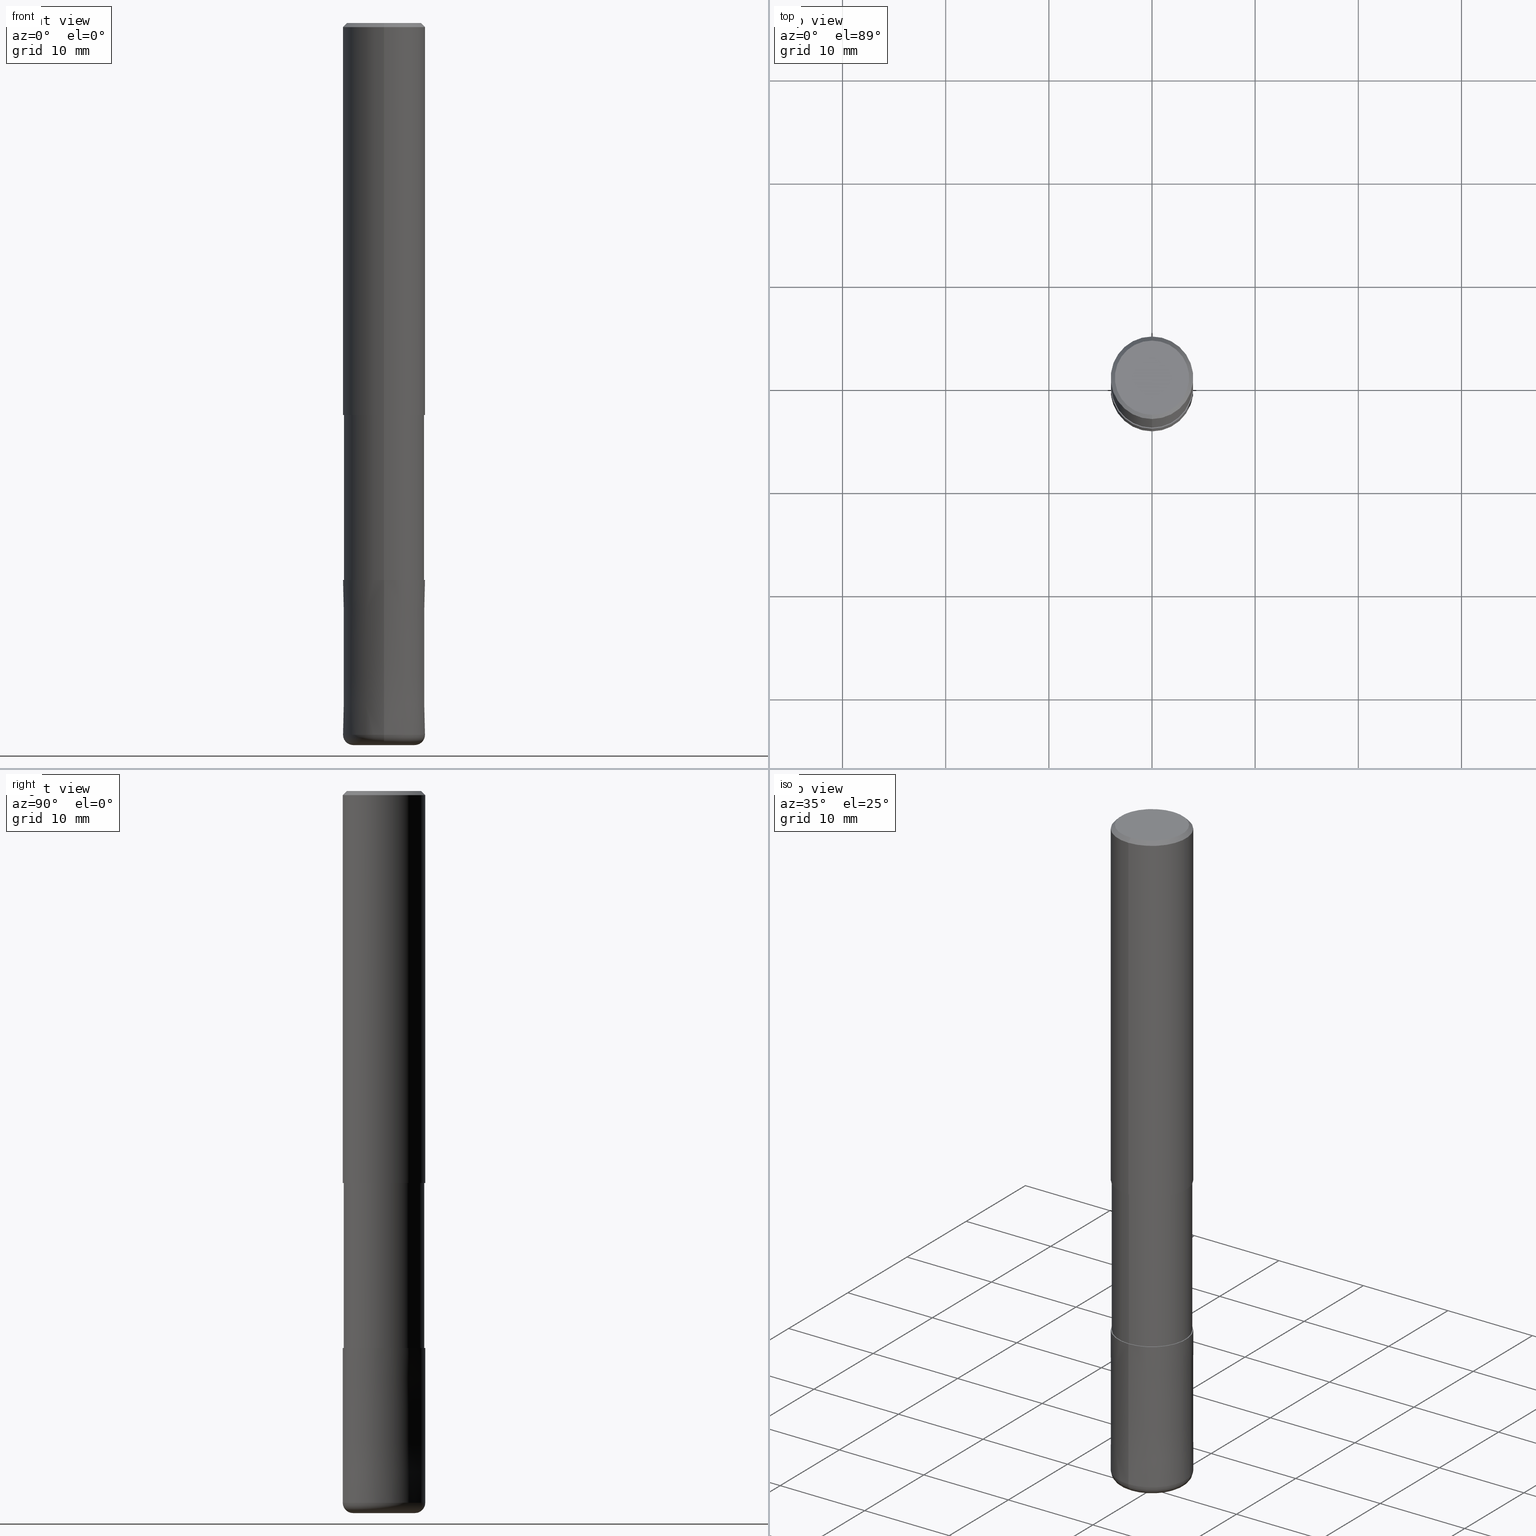
[diagram: canonical four-view strip — front | top / right | iso, engineering-drawing reading convention]
A machine part, canonical four-view strip (front | top / right | iso — engineering-drawing reading convention). The complete STEP part file that produces these views, byte-faithful:
ISO-10303-21;
HEADER;
FILE_DESCRIPTION(('no description'),'unknown implementation level');
FILE_NAME('CXLRS5080-10-32-Huellk.stp','  ',('CIMSOURCE GmbH'),('CADClick - KiM GmbH - www.kimweb.de'),'unknown preprocess','ACIS','unknown authorization');
FILE_SCHEMA(('automotive_design'));
ENDSEC;
DATA;
#1=MECHANICAL_DESIGN_GEOMETRIC_PRESENTATION_REPRESENTATION(' ',(#14,#15,#16,#17,#18,#19,#20,#21,#22,#23,#24,#25,#26,#27,#28,#29,#30,#31,#32,#33,#34,#35,#36,#37,#38,#39,#40,#41,#42,#43,#44,#45,#46,#47,#48,#49,#50,#51,#52,#53,#54,#55,#56,#57,#58,#59,#60,#61,#62,#63,#64,#65,#66,#67,#68,#69,#70,#71,#72,#73,#74,#75,#76,#77,#78,#79,#80,#81,#82,#83,#84,#85,#86,#87,#88,#89,#90,#91,#92,#93,#94,#95,#96,#97),#10);
#2=PRODUCT_DEFINITION_CONTEXT('',#98,'design');
#3=APPLICATION_PROTOCOL_DEFINITION('INTERNATIONAL STANDARD','automotive_design',1994,#98);
#4=PRODUCT_CATEGORY_RELATIONSHIP('NONE','NONE',#99,#100);
#5=SHAPE_DEFINITION_REPRESENTATION(#101,#102);
#6=PRODUCT_DEFINITION_CONTEXT('',#103,'design');
#7=APPLICATION_PROTOCOL_DEFINITION('INTERNATIONAL STANDARD','automotive_design',1994,#103);
#8=PRODUCT_CATEGORY_RELATIONSHIP('NONE','NONE',#104,#105);
#9=SHAPE_DEFINITION_REPRESENTATION(#106,#107);
#10= (GEOMETRIC_REPRESENTATION_CONTEXT(3)GLOBAL_UNCERTAINTY_ASSIGNED_CONTEXT((#110))GLOBAL_UNIT_ASSIGNED_CONTEXT((#112,#113,#114))REPRESENTATION_CONTEXT('NONE','WORKSPACE'));
#14=STYLED_ITEM('',(#116),#117);
#15=STYLED_ITEM('',(#118),#119);
#16=STYLED_ITEM('',(#120),#121);
#17=STYLED_ITEM('',(#122),#123);
#18=STYLED_ITEM('',(#124),#125);
#19=STYLED_ITEM('',(#126),#127);
#20=STYLED_ITEM('',(#128),#129);
#21=STYLED_ITEM('',(#130),#131);
#22=STYLED_ITEM('',(#132),#133);
#23=STYLED_ITEM('',(#134),#135);
#24=STYLED_ITEM('',(#136),#137);
#25=STYLED_ITEM('',(#138),#139);
#26=STYLED_ITEM('',(#140),#141);
#27=STYLED_ITEM('',(#142),#143);
#28=STYLED_ITEM('',(#144),#145);
#29=STYLED_ITEM('',(#146),#147);
#30=STYLED_ITEM('',(#148),#149);
#31=STYLED_ITEM('',(#150),#151);
#32=STYLED_ITEM('',(#152),#153);
#33=STYLED_ITEM('',(#154),#155);
#34=STYLED_ITEM('',(#156),#157);
#35=STYLED_ITEM('',(#158),#159);
#36=STYLED_ITEM('',(#160),#161);
#37=STYLED_ITEM('',(#162),#163);
#38=STYLED_ITEM('',(#164),#165);
#39=STYLED_ITEM('',(#166),#167);
#40=STYLED_ITEM('',(#168),#169);
#41=STYLED_ITEM('',(#170),#171);
#42=STYLED_ITEM('',(#172),#173);
#43=STYLED_ITEM('',(#174),#175);
#44=STYLED_ITEM('',(#176),#177);
#45=STYLED_ITEM('',(#178),#179);
#46=STYLED_ITEM('',(#180),#181);
#47=STYLED_ITEM('',(#182),#183);
#48=STYLED_ITEM('',(#184),#185);
#49=STYLED_ITEM('',(#186),#187);
#50=STYLED_ITEM('',(#188),#189);
#51=STYLED_ITEM('',(#190),#191);
#52=STYLED_ITEM('',(#192),#193);
#53=STYLED_ITEM('',(#194),#195);
#54=STYLED_ITEM('',(#196),#197);
#55=STYLED_ITEM('',(#198),#199);
#56=STYLED_ITEM('',(#200),#201);
#57=STYLED_ITEM('',(#202),#203);
#58=STYLED_ITEM('',(#204),#205);
#59=STYLED_ITEM('',(#206),#207);
#60=STYLED_ITEM('',(#208),#209);
#61=STYLED_ITEM('',(#210),#211);
#62=STYLED_ITEM('',(#212),#213);
#63=STYLED_ITEM('',(#214),#215);
#64=STYLED_ITEM('',(#216),#217);
#65=STYLED_ITEM('',(#218),#219);
#66=STYLED_ITEM('',(#220),#221);
#67=STYLED_ITEM('',(#222),#223);
#68=STYLED_ITEM('',(#224),#225);
#69=STYLED_ITEM('',(#226),#227);
#70=STYLED_ITEM('',(#228),#229);
#71=STYLED_ITEM('',(#230),#231);
#72=STYLED_ITEM('',(#232),#233);
#73=STYLED_ITEM('',(#234),#235);
#74=STYLED_ITEM('',(#236),#237);
#75=STYLED_ITEM('',(#238),#239);
#76=STYLED_ITEM('',(#240),#241);
#77=STYLED_ITEM('',(#242),#243);
#78=STYLED_ITEM('',(#244),#245);
#79=STYLED_ITEM('',(#246),#247);
#80=STYLED_ITEM('',(#248),#249);
#81=STYLED_ITEM('',(#250),#251);
#82=STYLED_ITEM('',(#252),#253);
#83=STYLED_ITEM('',(#254),#255);
#84=STYLED_ITEM('',(#256),#257);
#85=STYLED_ITEM('',(#258),#259);
#86=STYLED_ITEM('',(#260),#261);
#87=STYLED_ITEM('',(#262),#263);
#88=STYLED_ITEM('',(#264),#265);
#89=STYLED_ITEM('',(#266),#267);
#90=STYLED_ITEM('',(#268),#269);
#91=STYLED_ITEM('',(#270),#271);
#92=STYLED_ITEM('',(#272),#273);
#93=STYLED_ITEM('',(#274),#275);
#94=STYLED_ITEM('',(#276),#277);
#95=STYLED_ITEM('',(#278),#279);
#96=STYLED_ITEM('',(#280),#281);
#97=STYLED_ITEM('',(#282),#283);
#98=APPLICATION_CONTEXT(' ');
#99=PRODUCT_CATEGORY('part','NONE');
#100=PRODUCT_RELATED_PRODUCT_CATEGORY('detail',' ',(#284));
#101=PRODUCT_DEFINITION_SHAPE('NONE','NONE',#285);
#102=ADVANCED_BREP_SHAPE_REPRESENTATION('1',(#181,#286),#10);
#103=APPLICATION_CONTEXT(' ');
#104=PRODUCT_CATEGORY('part','NONE');
#105=PRODUCT_RELATED_PRODUCT_CATEGORY('detail',' ',(#287));
#106=PRODUCT_DEFINITION_SHAPE('NONE','NONE',#288);
#107=ADVANCED_BREP_SHAPE_REPRESENTATION('2',(#119,#289),#10);
#110=UNCERTAINTY_MEASURE_WITH_UNIT(LENGTH_MEASURE(1.0E-006),#112,'','');
#112= (CONVERSION_BASED_UNIT('MILLIMETRE',#292)LENGTH_UNIT()NAMED_UNIT(#295));
#113= (NAMED_UNIT(#297)PLANE_ANGLE_UNIT()SI_UNIT($,.RADIAN.));
#114= (NAMED_UNIT(#297)SOLID_ANGLE_UNIT()SI_UNIT($,.STERADIAN.));
#116=PRESENTATION_STYLE_ASSIGNMENT((#303));
#117=VERTEX_POINT('',#304);
#118=PRESENTATION_STYLE_ASSIGNMENT((#305));
#119=MANIFOLD_SOLID_BREP('2',#306);
#120=PRESENTATION_STYLE_ASSIGNMENT((#307));
#121=ADVANCED_FACE('',(#308),#309,.T.);
#122=PRESENTATION_STYLE_ASSIGNMENT((#310));
#123=VERTEX_POINT('',#311);
#124=PRESENTATION_STYLE_ASSIGNMENT((#312));
#125=EDGE_CURVE('',#189,#143,#313,.T.);
#126=PRESENTATION_STYLE_ASSIGNMENT((#314));
#127=EDGE_CURVE('',#213,#243,#315,.T.);
#128=PRESENTATION_STYLE_ASSIGNMENT((#316));
#129=ADVANCED_FACE('',(#317),#318,.T.);
#130=PRESENTATION_STYLE_ASSIGNMENT((#319));
#131=EDGE_CURVE('',#137,#195,#320,.T.);
#132=PRESENTATION_STYLE_ASSIGNMENT((#321));
#133=EDGE_CURVE('',#203,#239,#322,.T.);
#134=PRESENTATION_STYLE_ASSIGNMENT((#323));
#135=EDGE_CURVE('',#283,#151,#324,.T.);
#136=PRESENTATION_STYLE_ASSIGNMENT((#325));
#137=VERTEX_POINT('',#326);
#138=PRESENTATION_STYLE_ASSIGNMENT((#327));
#139=EDGE_CURVE('',#279,#201,#328,.T.);
#140=PRESENTATION_STYLE_ASSIGNMENT((#329));
#141=EDGE_CURVE('',#187,#209,#330,.T.);
#142=PRESENTATION_STYLE_ASSIGNMENT((#331));
#143=VERTEX_POINT('',#332);
#144=PRESENTATION_STYLE_ASSIGNMENT((#333));
#145=ADVANCED_FACE('',(#334),#335,.T.);
#146=PRESENTATION_STYLE_ASSIGNMENT((#336));
#147=EDGE_CURVE('',#257,#241,#337,.T.);
#148=PRESENTATION_STYLE_ASSIGNMENT((#338));
#149=VERTEX_POINT('',#339);
#150=PRESENTATION_STYLE_ASSIGNMENT((#340));
#151=VERTEX_POINT('',#341);
#152=PRESENTATION_STYLE_ASSIGNMENT((#342));
#153=EDGE_CURVE('',#203,#143,#343,.T.);
#154=PRESENTATION_STYLE_ASSIGNMENT((#344));
#155=EDGE_CURVE('',#279,#149,#345,.T.);
#156=PRESENTATION_STYLE_ASSIGNMENT((#346));
#157=EDGE_CURVE('',#237,#193,#347,.T.);
#158=PRESENTATION_STYLE_ASSIGNMENT((#348));
#159=ADVANCED_FACE('',(#349),#350,.T.);
#160=PRESENTATION_STYLE_ASSIGNMENT((#351));
#161=VERTEX_POINT('',#352);
#162=PRESENTATION_STYLE_ASSIGNMENT((#353));
#163=EDGE_CURVE('',#183,#161,#354,.T.);
#164=PRESENTATION_STYLE_ASSIGNMENT((#355));
#165=ADVANCED_FACE('',(#356),#357,.T.);
#166=PRESENTATION_STYLE_ASSIGNMENT((#358));
#167=EDGE_CURVE('',#123,#151,#359,.T.);
#168=PRESENTATION_STYLE_ASSIGNMENT((#360));
#169=ADVANCED_FACE('',(#361),#362,.T.);
#170=PRESENTATION_STYLE_ASSIGNMENT((#363));
#171=ADVANCED_FACE('',(#364),#365,.T.);
#172=PRESENTATION_STYLE_ASSIGNMENT((#366));
#173=ADVANCED_FACE('',(#367,#368),#369,.T.);
#174=PRESENTATION_STYLE_ASSIGNMENT((#370));
#175=EDGE_CURVE('',#187,#237,#371,.T.);
#176=PRESENTATION_STYLE_ASSIGNMENT((#372));
#177=EDGE_CURVE('',#283,#211,#373,.T.);
#178=PRESENTATION_STYLE_ASSIGNMENT((#374));
#179=EDGE_CURVE('',#151,#283,#375,.T.);
#180=PRESENTATION_STYLE_ASSIGNMENT((#376));
#181=MANIFOLD_SOLID_BREP('1',#377);
#182=PRESENTATION_STYLE_ASSIGNMENT((#378));
#183=VERTEX_POINT('',#379);
#184=PRESENTATION_STYLE_ASSIGNMENT((#380));
#185=ADVANCED_FACE('',(#381),#382,.T.);
#186=PRESENTATION_STYLE_ASSIGNMENT((#383));
#187=VERTEX_POINT('',#384);
#188=PRESENTATION_STYLE_ASSIGNMENT((#385));
#189=VERTEX_POINT('',#386);
#190=PRESENTATION_STYLE_ASSIGNMENT((#387));
#191=EDGE_CURVE('',#209,#187,#388,.T.);
#192=PRESENTATION_STYLE_ASSIGNMENT((#389));
#193=VERTEX_POINT('',#390);
#194=PRESENTATION_STYLE_ASSIGNMENT((#391));
#195=VERTEX_POINT('',#392);
#196=PRESENTATION_STYLE_ASSIGNMENT((#393));
#197=EDGE_CURVE('',#123,#211,#394,.T.);
#198=PRESENTATION_STYLE_ASSIGNMENT((#395));
#199=EDGE_CURVE('',#239,#203,#396,.T.);
#200=PRESENTATION_STYLE_ASSIGNMENT((#397));
#201=VERTEX_POINT('',#398);
#202=PRESENTATION_STYLE_ASSIGNMENT((#399));
#203=VERTEX_POINT('',#400);
#204=PRESENTATION_STYLE_ASSIGNMENT((#401));
#205=EDGE_CURVE('',#193,#209,#402,.T.);
#206=PRESENTATION_STYLE_ASSIGNMENT((#403));
#207=ADVANCED_FACE('',(#404),#405,.T.);
#208=PRESENTATION_STYLE_ASSIGNMENT((#406));
#209=VERTEX_POINT('',#407);
#210=PRESENTATION_STYLE_ASSIGNMENT((#408));
#211=VERTEX_POINT('',#409);
#212=PRESENTATION_STYLE_ASSIGNMENT((#410));
#213=VERTEX_POINT('',#411);
#214=PRESENTATION_STYLE_ASSIGNMENT((#412));
#215=EDGE_CURVE('',#149,#117,#413,.T.);
#216=PRESENTATION_STYLE_ASSIGNMENT((#414));
#217=ADVANCED_FACE('',(#415),#416,.T.);
#218=PRESENTATION_STYLE_ASSIGNMENT((#417));
#219=EDGE_CURVE('',#161,#243,#418,.T.);
#220=PRESENTATION_STYLE_ASSIGNMENT((#419));
#221=EDGE_CURVE('',#193,#237,#420,.T.);
#222=PRESENTATION_STYLE_ASSIGNMENT((#421));
#223=ADVANCED_FACE('',(#422),#423,.T.);
#224=PRESENTATION_STYLE_ASSIGNMENT((#424));
#225=ADVANCED_FACE('',(#425),#426,.F.);
#226=PRESENTATION_STYLE_ASSIGNMENT((#427));
#227=EDGE_CURVE('',#189,#241,#428,.T.);
#228=PRESENTATION_STYLE_ASSIGNMENT((#429));
#229=EDGE_CURVE('',#117,#149,#430,.T.);
#230=PRESENTATION_STYLE_ASSIGNMENT((#431));
#231=ADVANCED_FACE('',(#432),#433,.T.);
#232=PRESENTATION_STYLE_ASSIGNMENT((#434));
#233=ADVANCED_FACE('',(#435,#436),#437,.T.);
#234=PRESENTATION_STYLE_ASSIGNMENT((#438));
#235=ADVANCED_FACE('',(#439,#440),#441,.T.);
#236=PRESENTATION_STYLE_ASSIGNMENT((#442));
#237=VERTEX_POINT('',#443);
#238=PRESENTATION_STYLE_ASSIGNMENT((#444));
#239=VERTEX_POINT('',#445);
#240=PRESENTATION_STYLE_ASSIGNMENT((#446));
#241=VERTEX_POINT('',#447);
#242=PRESENTATION_STYLE_ASSIGNMENT((#448));
#243=VERTEX_POINT('',#449);
#244=PRESENTATION_STYLE_ASSIGNMENT((#450));
#245=ADVANCED_FACE('',(#451,#452),#453,.T.);
#246=PRESENTATION_STYLE_ASSIGNMENT((#454));
#247=ADVANCED_FACE('',(#455),#456,.T.);
#248=PRESENTATION_STYLE_ASSIGNMENT((#457));
#249=EDGE_CURVE('',#211,#123,#458,.T.);
#250=PRESENTATION_STYLE_ASSIGNMENT((#459));
#251=EDGE_CURVE('',#117,#201,#460,.T.);
#252=PRESENTATION_STYLE_ASSIGNMENT((#461));
#253=EDGE_CURVE('',#161,#183,#462,.T.);
#254=PRESENTATION_STYLE_ASSIGNMENT((#463));
#255=EDGE_CURVE('',#201,#279,#464,.T.);
#256=PRESENTATION_STYLE_ASSIGNMENT((#465));
#257=VERTEX_POINT('',#466);
#258=PRESENTATION_STYLE_ASSIGNMENT((#467));
#259=EDGE_CURVE('',#195,#213,#468,.T.);
#260=PRESENTATION_STYLE_ASSIGNMENT((#469));
#261=EDGE_CURVE('',#189,#239,#470,.T.);
#262=PRESENTATION_STYLE_ASSIGNMENT((#471));
#263=EDGE_CURVE('',#213,#183,#472,.T.);
#264=PRESENTATION_STYLE_ASSIGNMENT((#473));
#265=ADVANCED_FACE('',(#474),#475,.T.);
#266=PRESENTATION_STYLE_ASSIGNMENT((#476));
#267=EDGE_CURVE('',#257,#143,#477,.T.);
#268=PRESENTATION_STYLE_ASSIGNMENT((#478));
#269=EDGE_CURVE('',#195,#137,#479,.T.);
#270=PRESENTATION_STYLE_ASSIGNMENT((#480));
#271=EDGE_CURVE('',#243,#137,#481,.T.);
#272=PRESENTATION_STYLE_ASSIGNMENT((#482));
#273=EDGE_CURVE('',#143,#189,#483,.T.);
#274=PRESENTATION_STYLE_ASSIGNMENT((#484));
#275=ADVANCED_FACE('',(#485),#486,.F.);
#276=PRESENTATION_STYLE_ASSIGNMENT((#487));
#277=EDGE_CURVE('',#241,#257,#488,.T.);
#278=PRESENTATION_STYLE_ASSIGNMENT((#489));
#279=VERTEX_POINT('',#490);
#280=PRESENTATION_STYLE_ASSIGNMENT((#491));
#281=EDGE_CURVE('',#243,#213,#492,.T.);
#282=PRESENTATION_STYLE_ASSIGNMENT((#493));
#283=VERTEX_POINT('',#494);
#284=PRODUCT('1','1','PART-1-DESC',(#495));
#285=PRODUCT_DEFINITION('NONE','NONE',#496,#2);
#286=AXIS2_PLACEMENT_3D('',#497,#498,#499);
#287=PRODUCT('2','2','PART-2-DESC',(#500));
#288=PRODUCT_DEFINITION('NONE','NONE',#501,#6);
#289=AXIS2_PLACEMENT_3D('',#502,#503,#504);
#292=LENGTH_MEASURE_WITH_UNIT(LENGTH_MEASURE(1.0),#505);
#295=DIMENSIONAL_EXPONENTS(1.0,0.0,0.0,0.0,0.0,0.0,0.0);
#297=DIMENSIONAL_EXPONENTS(0.0,0.0,0.0,0.0,0.0,0.0,0.0);
#303=POINT_STYLE(' ',#506,POSITIVE_LENGTH_MEASURE(1.0E-006),#507);
#304=CARTESIAN_POINT('',(0.0,3.89995,-38.0));
#305=SURFACE_STYLE_USAGE(.BOTH.,#508);
#306=CLOSED_SHELL('',(#275,#265,#185,#245,#165,#207,#235,#225));
#307=SURFACE_STYLE_USAGE(.BOTH.,#509);
#308=FACE_OUTER_BOUND('',#510,.T.);
#309=CYLINDRICAL_SURFACE('',#511,4.0);
#310=POINT_STYLE(' ',#512,POSITIVE_LENGTH_MEASURE(1.0E-006),#513);
#311=CARTESIAN_POINT('',(2.20429143688028E-016,-1.8,-69.9));
#312=CURVE_STYLE('',#514,POSITIVE_LENGTH_MEASURE(1.0E-006),#515);
#313=CIRCLE('',#516,4.0);
#314=CURVE_STYLE('',#517,POSITIVE_LENGTH_MEASURE(1.0E-006),#518);
#315=CIRCLE('',#519,4.0);
#316=SURFACE_STYLE_USAGE(.BOTH.,#520);
#317=FACE_OUTER_BOUND('',#521,.T.);
#318=PLANE('',#522);
#319=CURVE_STYLE('',#523,POSITIVE_LENGTH_MEASURE(1.0E-006),#524);
#320=CIRCLE('',#525,3.6);
#321=CURVE_STYLE('',#526,POSITIVE_LENGTH_MEASURE(1.0E-006),#527);
#322=CIRCLE('',#528,3.9999);
#323=CURVE_STYLE('',#529,POSITIVE_LENGTH_MEASURE(1.0E-006),#530);
#324=CIRCLE('',#531,1.8);
#325=POINT_STYLE(' ',#532,POSITIVE_LENGTH_MEASURE(1.0E-006),#533);
#326=CARTESIAN_POINT('',(4.40858287376056E-016,-3.6,0.0));
#327=CURVE_STYLE('',#534,POSITIVE_LENGTH_MEASURE(1.0E-006),#535);
#328=CIRCLE('',#536,3.89995);
#329=CURVE_STYLE('',#537,POSITIVE_LENGTH_MEASURE(1.0E-006),#538);
#330=CIRCLE('',#539,1.8);
#331=POINT_STYLE(' ',#540,POSITIVE_LENGTH_MEASURE(1.0E-006),#541);
#332=CARTESIAN_POINT('',(0.0,4.0,-69.0));
#333=SURFACE_STYLE_USAGE(.BOTH.,#542);
#334=FACE_OUTER_BOUND('',#543,.T.);
#335=CYLINDRICAL_SURFACE('',#544,1.8);
#336=CURVE_STYLE('',#545,POSITIVE_LENGTH_MEASURE(1.0E-006),#546);
#337=CIRCLE('',#547,3.0);
#338=POINT_STYLE(' ',#548,POSITIVE_LENGTH_MEASURE(1.0E-006),#549);
#339=CARTESIAN_POINT('',(4.77590354958958E-016,-3.89995,-38.0));
#340=POINT_STYLE(' ',#550,POSITIVE_LENGTH_MEASURE(1.0E-006),#551);
#341=CARTESIAN_POINT('',(2.20429143688028E-016,-1.8,-54.0));
#342=CURVE_STYLE('',#552,POSITIVE_LENGTH_MEASURE(1.0E-006),#553);
#343=LINE('',#554,#555);
#344=CURVE_STYLE('',#556,POSITIVE_LENGTH_MEASURE(1.0E-006),#557);
#345=LINE('',#558,#559);
#346=CURVE_STYLE('',#560,POSITIVE_LENGTH_MEASURE(1.0E-006),#561);
#347=CIRCLE('',#562,1.8);
#348=SURFACE_STYLE_USAGE(.BOTH.,#563);
#349=FACE_OUTER_BOUND('',#564,.T.);
#350=CONICAL_SURFACE('',#565,3.8,0.78539816339745);
#351=POINT_STYLE(' ',#566,POSITIVE_LENGTH_MEASURE(1.0E-006),#567);
#352=CARTESIAN_POINT('',(4.89842541528951E-016,-4.0,-38.0));
#353=CURVE_STYLE('',#568,POSITIVE_LENGTH_MEASURE(1.0E-006),#569);
#354=CIRCLE('',#570,4.0);
#355=SURFACE_STYLE_USAGE(.BOTH.,#571);
#356=FACE_OUTER_BOUND('',#572,.T.);
#357=CONICAL_SURFACE('',#573,3.99995,6.66666666658197E-006);
#358=CURVE_STYLE('',#574,POSITIVE_LENGTH_MEASURE(1.0E-006),#575);
#359=LINE('',#576,#577);
#360=SURFACE_STYLE_USAGE(.BOTH.,#578);
#361=FACE_OUTER_BOUND('',#579,.T.);
#362=CYLINDRICAL_SURFACE('',#580,3.89995);
#363=SURFACE_STYLE_USAGE(.BOTH.,#581);
#364=FACE_OUTER_BOUND('',#582,.T.);
#365=CYLINDRICAL_SURFACE('',#583,3.89995);
#366=SURFACE_STYLE_USAGE(.BOTH.,#584);
#367=FACE_OUTER_BOUND('',#585,.T.);
#368=FACE_BOUND('',#586,.T.);
#369=PLANE('',#587);
#370=CURVE_STYLE('',#588,POSITIVE_LENGTH_MEASURE(1.0E-006),#589);
#371=LINE('',#590,#591);
#372=CURVE_STYLE('',#592,POSITIVE_LENGTH_MEASURE(1.0E-006),#593);
#373=LINE('',#594,#595);
#374=CURVE_STYLE('',#596,POSITIVE_LENGTH_MEASURE(1.0E-006),#597);
#375=CIRCLE('',#598,1.8);
#376=SURFACE_STYLE_USAGE(.BOTH.,#599);
#377=CLOSED_SHELL('',(#223,#169,#247,#217,#173,#129,#159,#121,#171,#233,#145,#231));
#378=POINT_STYLE(' ',#600,POSITIVE_LENGTH_MEASURE(1.0E-006),#601);
#379=CARTESIAN_POINT('',(0.0,4.0,-38.0));
#380=SURFACE_STYLE_USAGE(.BOTH.,#602);
#381=FACE_OUTER_BOUND('',#603,.T.);
#382=CONICAL_SURFACE('',#604,3.99995,6.66666666658197E-006);
#383=POINT_STYLE(' ',#605,POSITIVE_LENGTH_MEASURE(1.0E-006),#606);
#384=CARTESIAN_POINT('',(2.20429143688028E-016,-1.8,-70.0));
#385=POINT_STYLE(' ',#607,POSITIVE_LENGTH_MEASURE(1.0E-006),#608);
#386=CARTESIAN_POINT('',(4.89842541528951E-016,-4.0,-69.0));
#387=CURVE_STYLE('',#609,POSITIVE_LENGTH_MEASURE(1.0E-006),#610);
#388=CIRCLE('',#611,1.8);
#389=POINT_STYLE(' ',#612,POSITIVE_LENGTH_MEASURE(1.0E-006),#613);
#390=CARTESIAN_POINT('',(0.0,1.8,-54.0));
#391=POINT_STYLE(' ',#614,POSITIVE_LENGTH_MEASURE(1.0E-006),#615);
#392=CARTESIAN_POINT('',(0.0,3.6,0.0));
#393=CURVE_STYLE('',#616,POSITIVE_LENGTH_MEASURE(1.0E-006),#617);
#394=CIRCLE('',#618,1.8);
#395=CURVE_STYLE('',#619,POSITIVE_LENGTH_MEASURE(1.0E-006),#620);
#396=CIRCLE('',#621,3.9999);
#397=POINT_STYLE(' ',#622,POSITIVE_LENGTH_MEASURE(1.0E-006),#623);
#398=CARTESIAN_POINT('',(0.0,3.89995,-54.0));
#399=POINT_STYLE(' ',#624,POSITIVE_LENGTH_MEASURE(1.0E-006),#625);
#400=CARTESIAN_POINT('',(0.0,3.9999,-54.0));
#401=CURVE_STYLE('',#626,POSITIVE_LENGTH_MEASURE(1.0E-006),#627);
#402=LINE('',#628,#629);
#403=SURFACE_STYLE_USAGE(.BOTH.,#630);
#404=FACE_OUTER_BOUND('',#631,.T.);
#405=TOROIDAL_SURFACE('',#632,3.0,1.0);
#406=POINT_STYLE(' ',#633,POSITIVE_LENGTH_MEASURE(1.0E-006),#634);
#407=CARTESIAN_POINT('',(0.0,1.8,-70.0));
#408=POINT_STYLE(' ',#635,POSITIVE_LENGTH_MEASURE(1.0E-006),#636);
#409=CARTESIAN_POINT('',(0.0,1.8,-69.9));
#410=POINT_STYLE(' ',#637,POSITIVE_LENGTH_MEASURE(1.0E-006),#638);
#411=CARTESIAN_POINT('',(0.0,4.0,-0.399999999999999));
#412=CURVE_STYLE('',#639,POSITIVE_LENGTH_MEASURE(1.0E-006),#640);
#413=CIRCLE('',#641,3.89995);
#414=SURFACE_STYLE_USAGE(.BOTH.,#642);
#415=FACE_OUTER_BOUND('',#643,.T.);
#416=CONICAL_SURFACE('',#644,3.8,0.78539816339745);
#417=CURVE_STYLE('',#645,POSITIVE_LENGTH_MEASURE(1.0E-006),#646);
#418=LINE('',#647,#648);
#419=CURVE_STYLE('',#649,POSITIVE_LENGTH_MEASURE(1.0E-006),#650);
#420=CIRCLE('',#651,1.8);
#421=SURFACE_STYLE_USAGE(.BOTH.,#652);
#422=FACE_OUTER_BOUND('',#653,.T.);
#423=CYLINDRICAL_SURFACE('',#654,1.8);
#424=SURFACE_STYLE_USAGE(.BOTH.,#655);
#425=FACE_OUTER_BOUND('',#656,.T.);
#426=CYLINDRICAL_SURFACE('',#657,1.8);
#427=CURVE_STYLE('',#658,POSITIVE_LENGTH_MEASURE(1.0E-006),#659);
#428=CIRCLE('',#660,1.0);
#429=CURVE_STYLE('',#661,POSITIVE_LENGTH_MEASURE(1.0E-006),#662);
#430=CIRCLE('',#663,3.89995);
#431=SURFACE_STYLE_USAGE(.BOTH.,#664);
#432=FACE_OUTER_BOUND('',#665,.T.);
#433=PLANE('',#666);
#434=SURFACE_STYLE_USAGE(.BOTH.,#667);
#435=FACE_BOUND('',#668,.T.);
#436=FACE_OUTER_BOUND('',#669,.T.);
#437=PLANE('',#670);
#438=SURFACE_STYLE_USAGE(.BOTH.,#671);
#439=FACE_BOUND('',#672,.T.);
#440=FACE_OUTER_BOUND('',#673,.T.);
#441=PLANE('',#674);
#442=POINT_STYLE(' ',#675,POSITIVE_LENGTH_MEASURE(1.0E-006),#676);
#443=CARTESIAN_POINT('',(2.20429143688028E-016,-1.8,-54.0));
#444=POINT_STYLE(' ',#677,POSITIVE_LENGTH_MEASURE(1.0E-006),#678);
#445=CARTESIAN_POINT('',(4.89830295465413E-016,-3.9999,-54.0));
#446=POINT_STYLE(' ',#679,POSITIVE_LENGTH_MEASURE(1.0E-006),#680);
#447=CARTESIAN_POINT('',(3.67381906146713E-016,-3.0,-70.0));
#448=POINT_STYLE(' ',#681,POSITIVE_LENGTH_MEASURE(1.0E-006),#682);
#449=CARTESIAN_POINT('',(4.89842541528951E-016,-4.0,-0.399999999999999));
#450=SURFACE_STYLE_USAGE(.BOTH.,#683);
#451=FACE_OUTER_BOUND('',#684,.T.);
#452=FACE_BOUND('',#685,.T.);
#453=PLANE('',#686);
#454=SURFACE_STYLE_USAGE(.BOTH.,#687);
#455=FACE_OUTER_BOUND('',#688,.T.);
#456=CYLINDRICAL_SURFACE('',#689,4.0);
#457=CURVE_STYLE('',#690,POSITIVE_LENGTH_MEASURE(1.0E-006),#691);
#458=CIRCLE('',#692,1.8);
#459=CURVE_STYLE('',#693,POSITIVE_LENGTH_MEASURE(1.0E-006),#694);
#460=LINE('',#695,#696);
#461=CURVE_STYLE('',#697,POSITIVE_LENGTH_MEASURE(1.0E-006),#698);
#462=CIRCLE('',#699,4.0);
#463=CURVE_STYLE('',#700,POSITIVE_LENGTH_MEASURE(1.0E-006),#701);
#464=CIRCLE('',#702,3.89995);
#465=POINT_STYLE(' ',#703,POSITIVE_LENGTH_MEASURE(1.0E-006),#704);
#466=CARTESIAN_POINT('',(0.0,3.0,-70.0));
#467=CURVE_STYLE('',#705,POSITIVE_LENGTH_MEASURE(1.0E-006),#706);
#468=LINE('',#707,#708);
#469=CURVE_STYLE('',#709,POSITIVE_LENGTH_MEASURE(1.0E-006),#710);
#470=LINE('',#711,#712);
#471=CURVE_STYLE('',#713,POSITIVE_LENGTH_MEASURE(1.0E-006),#714);
#472=LINE('',#715,#716);
#473=SURFACE_STYLE_USAGE(.BOTH.,#717);
#474=FACE_OUTER_BOUND('',#718,.T.);
#475=TOROIDAL_SURFACE('',#719,3.0,1.0);
#476=CURVE_STYLE('',#720,POSITIVE_LENGTH_MEASURE(1.0E-006),#721);
#477=CIRCLE('',#722,1.0);
#478=CURVE_STYLE('',#723,POSITIVE_LENGTH_MEASURE(1.0E-006),#724);
#479=CIRCLE('',#725,3.6);
#480=CURVE_STYLE('',#726,POSITIVE_LENGTH_MEASURE(1.0E-006),#727);
#481=LINE('',#728,#729);
#482=CURVE_STYLE('',#730,POSITIVE_LENGTH_MEASURE(1.0E-006),#731);
#483=CIRCLE('',#732,4.0);
#484=SURFACE_STYLE_USAGE(.BOTH.,#733);
#485=FACE_OUTER_BOUND('',#734,.T.);
#486=CYLINDRICAL_SURFACE('',#735,1.8);
#487=CURVE_STYLE('',#736,POSITIVE_LENGTH_MEASURE(1.0E-006),#737);
#488=CIRCLE('',#738,3.0);
#489=POINT_STYLE(' ',#739,POSITIVE_LENGTH_MEASURE(1.0E-006),#740);
#490=CARTESIAN_POINT('',(4.77590354958958E-016,-3.89995,-54.0));
#491=CURVE_STYLE('',#741,POSITIVE_LENGTH_MEASURE(1.0E-006),#742);
#492=CIRCLE('',#743,4.0);
#493=POINT_STYLE(' ',#744,POSITIVE_LENGTH_MEASURE(1.0E-006),#745);
#494=CARTESIAN_POINT('',(0.0,1.8,-54.0));
#495=PRODUCT_CONTEXT('',#98,'mechanical');
#496=PRODUCT_DEFINITION_FORMATION_WITH_SPECIFIED_SOURCE(' ','NONE',#284,.NOT_KNOWN.);
#497=CARTESIAN_POINT('',(0.0,0.0,0.0));
#498=DIRECTION('',(0.0,0.0,1.0));
#499=DIRECTION('',(1.0,0.0,0.0));
#500=PRODUCT_CONTEXT('',#103,'mechanical');
#501=PRODUCT_DEFINITION_FORMATION_WITH_SPECIFIED_SOURCE(' ','NONE',#287,.NOT_KNOWN.);
#502=CARTESIAN_POINT('',(0.0,0.0,0.0));
#503=DIRECTION('',(0.0,0.0,1.0));
#504=DIRECTION('',(1.0,0.0,0.0));
#505= (NAMED_UNIT(#295)LENGTH_UNIT()SI_UNIT(.MILLI.,.METRE.));
#506=PRE_DEFINED_MARKER('');
#507=COLOUR_RGB('',0.498039215803146,0.498039215803146,0.498039215803146);
#508=SURFACE_SIDE_STYLE('',(#747));
#509=SURFACE_SIDE_STYLE('',(#748));
#510=EDGE_LOOP('',(#749,#750,#751,#752));
#511=AXIS2_PLACEMENT_3D('',#753,#754,#755);
#512=PRE_DEFINED_MARKER('');
#513=COLOUR_RGB('',0.498039215803146,0.498039215803146,0.498039215803146);
#514=DRAUGHTING_PRE_DEFINED_CURVE_FONT('continuous');
#515=COLOUR_RGB('',0.800000011920929,0.800000011920929,0.800000011920929);
#516=AXIS2_PLACEMENT_3D('',#756,#757,#758);
#517=DRAUGHTING_PRE_DEFINED_CURVE_FONT('continuous');
#518=COLOUR_RGB('',0.498039215803146,0.498039215803146,0.498039215803146);
#519=AXIS2_PLACEMENT_3D('',#759,#760,#761);
#520=SURFACE_SIDE_STYLE('',(#762));
#521=EDGE_LOOP('',(#763,#764));
#522=AXIS2_PLACEMENT_3D('',#765,#766,#767);
#523=DRAUGHTING_PRE_DEFINED_CURVE_FONT('continuous');
#524=COLOUR_RGB('',0.498039215803146,0.498039215803146,0.498039215803146);
#525=AXIS2_PLACEMENT_3D('',#768,#769,#770);
#526=DRAUGHTING_PRE_DEFINED_CURVE_FONT('continuous');
#527=COLOUR_RGB('',0.800000011920929,0.800000011920929,0.800000011920929);
#528=AXIS2_PLACEMENT_3D('',#771,#772,#773);
#529=DRAUGHTING_PRE_DEFINED_CURVE_FONT('continuous');
#530=COLOUR_RGB('',0.498039215803146,0.498039215803146,0.498039215803146);
#531=AXIS2_PLACEMENT_3D('',#774,#775,#776);
#532=PRE_DEFINED_MARKER('');
#533=COLOUR_RGB('',0.498039215803146,0.498039215803146,0.498039215803146);
#534=DRAUGHTING_PRE_DEFINED_CURVE_FONT('continuous');
#535=COLOUR_RGB('',0.498039215803146,0.498039215803146,0.498039215803146);
#536=AXIS2_PLACEMENT_3D('',#777,#778,#779);
#537=DRAUGHTING_PRE_DEFINED_CURVE_FONT('continuous');
#538=COLOUR_RGB('',0.800000011920929,0.800000011920929,0.800000011920929);
#539=AXIS2_PLACEMENT_3D('',#780,#781,#782);
#540=PRE_DEFINED_MARKER('');
#541=COLOUR_RGB('',0.800000011920929,0.800000011920929,0.800000011920929);
#542=SURFACE_SIDE_STYLE('',(#783));
#543=EDGE_LOOP('',(#784,#785,#786,#787));
#544=AXIS2_PLACEMENT_3D('',#788,#789,#790);
#545=DRAUGHTING_PRE_DEFINED_CURVE_FONT('continuous');
#546=COLOUR_RGB('',0.800000011920929,0.800000011920929,0.800000011920929);
#547=AXIS2_PLACEMENT_3D('',#791,#792,#793);
#548=PRE_DEFINED_MARKER('');
#549=COLOUR_RGB('',0.498039215803146,0.498039215803146,0.498039215803146);
#550=PRE_DEFINED_MARKER('');
#551=COLOUR_RGB('',0.498039215803146,0.498039215803146,0.498039215803146);
#552=DRAUGHTING_PRE_DEFINED_CURVE_FONT('continuous');
#553=COLOUR_RGB('',0.800000011920929,0.800000011920929,0.800000011920929);
#554=CARTESIAN_POINT('',(-4.89836418497182E-016,3.99995,-61.5));
#555=VECTOR('',#794,1.0);
#556=DRAUGHTING_PRE_DEFINED_CURVE_FONT('continuous');
#557=COLOUR_RGB('',0.498039215803146,0.498039215803146,0.498039215803146);
#558=CARTESIAN_POINT('',(4.77590354958958E-016,-3.89995,-46.0));
#559=VECTOR('',#795,1.0);
#560=DRAUGHTING_PRE_DEFINED_CURVE_FONT('continuous');
#561=COLOUR_RGB('',0.800000011920929,0.800000011920929,0.800000011920929);
#562=AXIS2_PLACEMENT_3D('',#796,#797,#798);
#563=SURFACE_SIDE_STYLE('',(#799));
#564=EDGE_LOOP('',(#800,#801,#802,#803));
#565=AXIS2_PLACEMENT_3D('',#804,#805,#806);
#566=PRE_DEFINED_MARKER('');
#567=COLOUR_RGB('',0.498039215803146,0.498039215803146,0.498039215803146);
#568=DRAUGHTING_PRE_DEFINED_CURVE_FONT('continuous');
#569=COLOUR_RGB('',0.498039215803146,0.498039215803146,0.498039215803146);
#570=AXIS2_PLACEMENT_3D('',#807,#808,#809);
#571=SURFACE_SIDE_STYLE('',(#810));
#572=EDGE_LOOP('',(#811,#812,#813,#814));
#573=AXIS2_PLACEMENT_3D('',#815,#816,#817);
#574=DRAUGHTING_PRE_DEFINED_CURVE_FONT('continuous');
#575=COLOUR_RGB('',0.498039215803146,0.498039215803146,0.498039215803146);
#576=CARTESIAN_POINT('',(2.20429143688028E-016,-1.8,-61.95));
#577=VECTOR('',#818,1.0);
#578=SURFACE_SIDE_STYLE('',(#819));
#579=EDGE_LOOP('',(#820,#821,#822,#823));
#580=AXIS2_PLACEMENT_3D('',#824,#825,#826);
#581=SURFACE_SIDE_STYLE('',(#827));
#582=EDGE_LOOP('',(#828,#829,#830,#831));
#583=AXIS2_PLACEMENT_3D('',#832,#833,#834);
#584=SURFACE_SIDE_STYLE('',(#835));
#585=EDGE_LOOP('',(#836,#837));
#586=EDGE_LOOP('',(#838,#839));
#587=AXIS2_PLACEMENT_3D('',#840,#841,#842);
#588=DRAUGHTING_PRE_DEFINED_CURVE_FONT('continuous');
#589=COLOUR_RGB('',0.800000011920929,0.800000011920929,0.800000011920929);
#590=CARTESIAN_POINT('',(2.20429143688028E-016,-1.8,-62.0));
#591=VECTOR('',#843,1.0);
#592=DRAUGHTING_PRE_DEFINED_CURVE_FONT('continuous');
#593=COLOUR_RGB('',0.498039215803146,0.498039215803146,0.498039215803146);
#594=CARTESIAN_POINT('',(-2.20429143688028E-016,1.8,-61.95));
#595=VECTOR('',#844,1.0);
#596=DRAUGHTING_PRE_DEFINED_CURVE_FONT('continuous');
#597=COLOUR_RGB('',0.498039215803146,0.498039215803146,0.498039215803146);
#598=AXIS2_PLACEMENT_3D('',#845,#846,#847);
#599=SURFACE_SIDE_STYLE('',(#848));
#600=PRE_DEFINED_MARKER('');
#601=COLOUR_RGB('',0.498039215803146,0.498039215803146,0.498039215803146);
#602=SURFACE_SIDE_STYLE('',(#849));
#603=EDGE_LOOP('',(#850,#851,#852,#853));
#604=AXIS2_PLACEMENT_3D('',#854,#855,#856);
#605=PRE_DEFINED_MARKER('');
#606=COLOUR_RGB('',0.800000011920929,0.800000011920929,0.800000011920929);
#607=PRE_DEFINED_MARKER('');
#608=COLOUR_RGB('',0.800000011920929,0.800000011920929,0.800000011920929);
#609=DRAUGHTING_PRE_DEFINED_CURVE_FONT('continuous');
#610=COLOUR_RGB('',0.800000011920929,0.800000011920929,0.800000011920929);
#611=AXIS2_PLACEMENT_3D('',#857,#858,#859);
#612=PRE_DEFINED_MARKER('');
#613=COLOUR_RGB('',0.800000011920929,0.800000011920929,0.800000011920929);
#614=PRE_DEFINED_MARKER('');
#615=COLOUR_RGB('',0.498039215803146,0.498039215803146,0.498039215803146);
#616=DRAUGHTING_PRE_DEFINED_CURVE_FONT('continuous');
#617=COLOUR_RGB('',0.498039215803146,0.498039215803146,0.498039215803146);
#618=AXIS2_PLACEMENT_3D('',#860,#861,#862);
#619=DRAUGHTING_PRE_DEFINED_CURVE_FONT('continuous');
#620=COLOUR_RGB('',0.800000011920929,0.800000011920929,0.800000011920929);
#621=AXIS2_PLACEMENT_3D('',#863,#864,#865);
#622=PRE_DEFINED_MARKER('');
#623=COLOUR_RGB('',0.498039215803146,0.498039215803146,0.498039215803146);
#624=PRE_DEFINED_MARKER('');
#625=COLOUR_RGB('',0.800000011920929,0.800000011920929,0.800000011920929);
#626=DRAUGHTING_PRE_DEFINED_CURVE_FONT('continuous');
#627=COLOUR_RGB('',0.800000011920929,0.800000011920929,0.800000011920929);
#628=CARTESIAN_POINT('',(-2.20429143688028E-016,1.8,-62.0));
#629=VECTOR('',#866,1.0);
#630=SURFACE_SIDE_STYLE('',(#867));
#631=EDGE_LOOP('',(#868,#869,#870,#871));
#632=AXIS2_PLACEMENT_3D('',#872,#873,#874);
#633=PRE_DEFINED_MARKER('');
#634=COLOUR_RGB('',0.800000011920929,0.800000011920929,0.800000011920929);
#635=PRE_DEFINED_MARKER('');
#636=COLOUR_RGB('',0.498039215803146,0.498039215803146,0.498039215803146);
#637=PRE_DEFINED_MARKER('');
#638=COLOUR_RGB('',0.498039215803146,0.498039215803146,0.498039215803146);
#639=DRAUGHTING_PRE_DEFINED_CURVE_FONT('continuous');
#640=COLOUR_RGB('',0.498039215803146,0.498039215803146,0.498039215803146);
#641=AXIS2_PLACEMENT_3D('',#875,#876,#877);
#642=SURFACE_SIDE_STYLE('',(#878));
#643=EDGE_LOOP('',(#879,#880,#881,#882));
#644=AXIS2_PLACEMENT_3D('',#883,#884,#885);
#645=DRAUGHTING_PRE_DEFINED_CURVE_FONT('continuous');
#646=COLOUR_RGB('',0.498039215803146,0.498039215803146,0.498039215803146);
#647=CARTESIAN_POINT('',(4.89842541528951E-016,-4.0,-19.2));
#648=VECTOR('',#886,1.0);
#649=DRAUGHTING_PRE_DEFINED_CURVE_FONT('continuous');
#650=COLOUR_RGB('',0.800000011920929,0.800000011920929,0.800000011920929);
#651=AXIS2_PLACEMENT_3D('',#887,#888,#889);
#652=SURFACE_SIDE_STYLE('',(#890));
#653=EDGE_LOOP('',(#891,#892,#893,#894));
#654=AXIS2_PLACEMENT_3D('',#895,#896,#897);
#655=SURFACE_SIDE_STYLE('',(#898));
#656=EDGE_LOOP('',(#899,#900,#901,#902));
#657=AXIS2_PLACEMENT_3D('',#903,#904,#905);
#658=DRAUGHTING_PRE_DEFINED_CURVE_FONT('continuous');
#659=COLOUR_RGB('',0.800000011920929,0.800000011920929,0.800000011920929);
#660=AXIS2_PLACEMENT_3D('',#906,#907,#908);
#661=DRAUGHTING_PRE_DEFINED_CURVE_FONT('continuous');
#662=COLOUR_RGB('',0.498039215803146,0.498039215803146,0.498039215803146);
#663=AXIS2_PLACEMENT_3D('',#909,#910,#911);
#664=SURFACE_SIDE_STYLE('',(#912));
#665=EDGE_LOOP('',(#913,#914));
#666=AXIS2_PLACEMENT_3D('',#915,#916,#917);
#667=SURFACE_SIDE_STYLE('',(#918));
#668=EDGE_LOOP('',(#919,#920));
#669=EDGE_LOOP('',(#921,#922));
#670=AXIS2_PLACEMENT_3D('',#923,#924,#925);
#671=SURFACE_SIDE_STYLE('',(#926));
#672=EDGE_LOOP('',(#927,#928));
#673=EDGE_LOOP('',(#929,#930));
#674=AXIS2_PLACEMENT_3D('',#931,#932,#933);
#675=PRE_DEFINED_MARKER('');
#676=COLOUR_RGB('',0.800000011920929,0.800000011920929,0.800000011920929);
#677=PRE_DEFINED_MARKER('');
#678=COLOUR_RGB('',0.800000011920929,0.800000011920929,0.800000011920929);
#679=PRE_DEFINED_MARKER('');
#680=COLOUR_RGB('',0.800000011920929,0.800000011920929,0.800000011920929);
#681=PRE_DEFINED_MARKER('');
#682=COLOUR_RGB('',0.498039215803146,0.498039215803146,0.498039215803146);
#683=SURFACE_SIDE_STYLE('',(#934));
#684=EDGE_LOOP('',(#935,#936));
#685=EDGE_LOOP('',(#937,#938));
#686=AXIS2_PLACEMENT_3D('',#939,#940,#941);
#687=SURFACE_SIDE_STYLE('',(#942));
#688=EDGE_LOOP('',(#943,#944,#945,#946));
#689=AXIS2_PLACEMENT_3D('',#947,#948,#949);
#690=DRAUGHTING_PRE_DEFINED_CURVE_FONT('continuous');
#691=COLOUR_RGB('',0.498039215803146,0.498039215803146,0.498039215803146);
#692=AXIS2_PLACEMENT_3D('',#950,#951,#952);
#693=DRAUGHTING_PRE_DEFINED_CURVE_FONT('continuous');
#694=COLOUR_RGB('',0.498039215803146,0.498039215803146,0.498039215803146);
#695=CARTESIAN_POINT('',(-4.77590354958958E-016,3.89995,-46.0));
#696=VECTOR('',#953,1.0);
#697=DRAUGHTING_PRE_DEFINED_CURVE_FONT('continuous');
#698=COLOUR_RGB('',0.498039215803146,0.498039215803146,0.498039215803146);
#699=AXIS2_PLACEMENT_3D('',#954,#955,#956);
#700=DRAUGHTING_PRE_DEFINED_CURVE_FONT('continuous');
#701=COLOUR_RGB('',0.498039215803146,0.498039215803146,0.498039215803146);
#702=AXIS2_PLACEMENT_3D('',#957,#958,#959);
#703=PRE_DEFINED_MARKER('');
#704=COLOUR_RGB('',0.800000011920929,0.800000011920929,0.800000011920929);
#705=DRAUGHTING_PRE_DEFINED_CURVE_FONT('continuous');
#706=COLOUR_RGB('',0.498039215803146,0.498039215803146,0.498039215803146);
#707=CARTESIAN_POINT('',(-4.65350414452503E-016,3.8,-0.199999999999996));
#708=VECTOR('',#960,1.0);
#709=DRAUGHTING_PRE_DEFINED_CURVE_FONT('continuous');
#710=COLOUR_RGB('',0.800000011920929,0.800000011920929,0.800000011920929);
#711=CARTESIAN_POINT('',(4.89836418497182E-016,-3.99995,-61.5));
#712=VECTOR('',#961,1.0);
#713=DRAUGHTING_PRE_DEFINED_CURVE_FONT('continuous');
#714=COLOUR_RGB('',0.498039215803146,0.498039215803146,0.498039215803146);
#715=CARTESIAN_POINT('',(-4.89842541528951E-016,4.0,-19.2));
#716=VECTOR('',#962,1.0);
#717=SURFACE_SIDE_STYLE('',(#963));
#718=EDGE_LOOP('',(#964,#965,#966,#967));
#719=AXIS2_PLACEMENT_3D('',#968,#969,#970);
#720=DRAUGHTING_PRE_DEFINED_CURVE_FONT('continuous');
#721=COLOUR_RGB('',0.800000011920929,0.800000011920929,0.800000011920929);
#722=AXIS2_PLACEMENT_3D('',#971,#972,#973);
#723=DRAUGHTING_PRE_DEFINED_CURVE_FONT('continuous');
#724=COLOUR_RGB('',0.498039215803146,0.498039215803146,0.498039215803146);
#725=AXIS2_PLACEMENT_3D('',#974,#975,#976);
#726=DRAUGHTING_PRE_DEFINED_CURVE_FONT('continuous');
#727=COLOUR_RGB('',0.498039215803146,0.498039215803146,0.498039215803146);
#728=CARTESIAN_POINT('',(4.65350414452503E-016,-3.8,-0.199999999999996));
#729=VECTOR('',#977,1.0);
#730=DRAUGHTING_PRE_DEFINED_CURVE_FONT('continuous');
#731=COLOUR_RGB('',0.800000011920929,0.800000011920929,0.800000011920929);
#732=AXIS2_PLACEMENT_3D('',#978,#979,#980);
#733=SURFACE_SIDE_STYLE('',(#981));
#734=EDGE_LOOP('',(#982,#983,#984,#985));
#735=AXIS2_PLACEMENT_3D('',#986,#987,#988);
#736=DRAUGHTING_PRE_DEFINED_CURVE_FONT('continuous');
#737=COLOUR_RGB('',0.800000011920929,0.800000011920929,0.800000011920929);
#738=AXIS2_PLACEMENT_3D('',#989,#990,#991);
#739=PRE_DEFINED_MARKER('');
#740=COLOUR_RGB('',0.498039215803146,0.498039215803146,0.498039215803146);
#741=DRAUGHTING_PRE_DEFINED_CURVE_FONT('continuous');
#742=COLOUR_RGB('',0.498039215803146,0.498039215803146,0.498039215803146);
#743=AXIS2_PLACEMENT_3D('',#992,#993,#994);
#744=PRE_DEFINED_MARKER('');
#745=COLOUR_RGB('',0.498039215803146,0.498039215803146,0.498039215803146);
#747=SURFACE_STYLE_FILL_AREA(#995);
#748=SURFACE_STYLE_FILL_AREA(#996);
#749=ORIENTED_EDGE('',*,*,#263,.T.);
#750=ORIENTED_EDGE('',*,*,#253,.F.);
#751=ORIENTED_EDGE('',*,*,#219,.T.);
#752=ORIENTED_EDGE('',*,*,#281,.T.);
#753=CARTESIAN_POINT('',(0.0,0.0,-19.2));
#754=DIRECTION('',(-0.0,-0.0,1.0));
#755=DIRECTION('',(0.0,1.0,0.0));
#756=CARTESIAN_POINT('',(0.0,0.0,-69.0));
#757=DIRECTION('',(0.0,0.0,-1.0));
#758=DIRECTION('',(0.0,1.0,0.0));
#759=CARTESIAN_POINT('',(0.0,0.0,-0.399999999999999));
#760=DIRECTION('',(0.0,0.0,-1.0));
#761=DIRECTION('',(0.0,1.0,0.0));
#762=SURFACE_STYLE_FILL_AREA(#997);
#763=ORIENTED_EDGE('',*,*,#269,.F.);
#764=ORIENTED_EDGE('',*,*,#131,.F.);
#765=CARTESIAN_POINT('',(0.0,1.8,0.0));
#766=DIRECTION('',(-0.0,0.0,1.0));
#767=DIRECTION('',(0.0,-1.0,0.0));
#768=CARTESIAN_POINT('',(0.0,0.0,0.0));
#769=DIRECTION('',(0.0,0.0,-1.0));
#770=DIRECTION('',(0.0,1.0,0.0));
#771=CARTESIAN_POINT('',(0.0,0.0,-54.0));
#772=DIRECTION('',(0.0,0.0,-1.0));
#773=DIRECTION('',(0.0,1.0,0.0));
#774=CARTESIAN_POINT('',(0.0,0.0,-54.0));
#775=DIRECTION('',(0.0,0.0,-1.0));
#776=DIRECTION('',(0.0,1.0,0.0));
#777=CARTESIAN_POINT('',(0.0,0.0,-54.0));
#778=DIRECTION('',(0.0,0.0,-1.0));
#779=DIRECTION('',(0.0,1.0,0.0));
#780=CARTESIAN_POINT('',(0.0,0.0,-70.0));
#781=DIRECTION('',(0.0,0.0,-1.0));
#782=DIRECTION('',(0.0,1.0,0.0));
#783=SURFACE_STYLE_FILL_AREA(#998);
#784=ORIENTED_EDGE('',*,*,#177,.T.);
#785=ORIENTED_EDGE('',*,*,#197,.F.);
#786=ORIENTED_EDGE('',*,*,#167,.T.);
#787=ORIENTED_EDGE('',*,*,#179,.T.);
#788=CARTESIAN_POINT('',(0.0,0.0,-61.95));
#789=DIRECTION('',(-0.0,-0.0,1.0));
#790=DIRECTION('',(0.0,1.0,0.0));
#791=CARTESIAN_POINT('',(0.0,0.0,-70.0));
#792=DIRECTION('',(0.0,0.0,-1.0));
#793=DIRECTION('',(0.0,1.0,0.0));
#794=DIRECTION('',(-8.16404235865165E-022,6.66666666653259E-006,-0.999999999977778));
#795=DIRECTION('',(-0.0,-0.0,1.0));
#796=CARTESIAN_POINT('',(0.0,0.0,-54.0));
#797=DIRECTION('',(0.0,0.0,-1.0));
#798=DIRECTION('',(0.0,1.0,0.0));
#799=SURFACE_STYLE_FILL_AREA(#999);
#800=ORIENTED_EDGE('',*,*,#259,.T.);
#801=ORIENTED_EDGE('',*,*,#281,.F.);
#802=ORIENTED_EDGE('',*,*,#271,.T.);
#803=ORIENTED_EDGE('',*,*,#131,.T.);
#804=CARTESIAN_POINT('',(0.0,0.0,-0.199999999999996));
#805=DIRECTION('',(0.0,-0.0,-1.0));
#806=DIRECTION('',(0.0,1.0,0.0));
#807=CARTESIAN_POINT('',(0.0,0.0,-38.0));
#808=DIRECTION('',(0.0,0.0,-1.0));
#809=DIRECTION('',(0.0,1.0,0.0));
#810=SURFACE_STYLE_FILL_AREA(#1000);
#811=ORIENTED_EDGE('',*,*,#153,.T.);
#812=ORIENTED_EDGE('',*,*,#125,.F.);
#813=ORIENTED_EDGE('',*,*,#261,.T.);
#814=ORIENTED_EDGE('',*,*,#199,.T.);
#815=CARTESIAN_POINT('',(0.0,0.0,-61.5));
#816=DIRECTION('',(0.0,-0.0,-1.0));
#817=DIRECTION('',(0.0,1.0,0.0));
#818=DIRECTION('',(-0.0,-0.0,1.0));
#819=SURFACE_STYLE_FILL_AREA(#1001);
#820=ORIENTED_EDGE('',*,*,#251,.F.);
#821=ORIENTED_EDGE('',*,*,#229,.T.);
#822=ORIENTED_EDGE('',*,*,#155,.F.);
#823=ORIENTED_EDGE('',*,*,#255,.F.);
#824=CARTESIAN_POINT('',(0.0,0.0,-46.0));
#825=DIRECTION('',(-0.0,-0.0,1.0));
#826=DIRECTION('',(0.0,1.0,0.0));
#827=SURFACE_STYLE_FILL_AREA(#1002);
#828=ORIENTED_EDGE('',*,*,#251,.T.);
#829=ORIENTED_EDGE('',*,*,#139,.F.);
#830=ORIENTED_EDGE('',*,*,#155,.T.);
#831=ORIENTED_EDGE('',*,*,#215,.T.);
#832=CARTESIAN_POINT('',(0.0,0.0,-46.0));
#833=DIRECTION('',(-0.0,-0.0,1.0));
#834=DIRECTION('',(0.0,1.0,0.0));
#835=SURFACE_STYLE_FILL_AREA(#1003);
#836=ORIENTED_EDGE('',*,*,#163,.T.);
#837=ORIENTED_EDGE('',*,*,#253,.T.);
#838=ORIENTED_EDGE('',*,*,#229,.F.);
#839=ORIENTED_EDGE('',*,*,#215,.F.);
#840=CARTESIAN_POINT('',(0.0,2.0,-38.0));
#841=DIRECTION('',(0.0,0.0,-1.0));
#842=DIRECTION('',(0.0,1.0,0.0));
#843=DIRECTION('',(0.0,-0.0,1.0));
#844=DIRECTION('',(0.0,0.0,-1.0));
#845=CARTESIAN_POINT('',(0.0,0.0,-54.0));
#846=DIRECTION('',(0.0,0.0,-1.0));
#847=DIRECTION('',(0.0,1.0,0.0));
#848=SURFACE_STYLE_FILL_AREA(#1004);
#849=SURFACE_STYLE_FILL_AREA(#1005);
#850=ORIENTED_EDGE('',*,*,#153,.F.);
#851=ORIENTED_EDGE('',*,*,#133,.T.);
#852=ORIENTED_EDGE('',*,*,#261,.F.);
#853=ORIENTED_EDGE('',*,*,#273,.F.);
#854=CARTESIAN_POINT('',(0.0,0.0,-61.5));
#855=DIRECTION('',(0.0,-0.0,-1.0));
#856=DIRECTION('',(0.0,1.0,0.0));
#857=CARTESIAN_POINT('',(0.0,0.0,-70.0));
#858=DIRECTION('',(0.0,0.0,-1.0));
#859=DIRECTION('',(0.0,1.0,0.0));
#860=CARTESIAN_POINT('',(0.0,0.0,-69.9));
#861=DIRECTION('',(0.0,0.0,-1.0));
#862=DIRECTION('',(0.0,1.0,0.0));
#863=CARTESIAN_POINT('',(0.0,0.0,-54.0));
#864=DIRECTION('',(0.0,0.0,-1.0));
#865=DIRECTION('',(0.0,1.0,0.0));
#866=DIRECTION('',(0.0,-0.0,-1.0));
#867=SURFACE_STYLE_FILL_AREA(#1006);
#868=ORIENTED_EDGE('',*,*,#227,.T.);
#869=ORIENTED_EDGE('',*,*,#147,.F.);
#870=ORIENTED_EDGE('',*,*,#267,.T.);
#871=ORIENTED_EDGE('',*,*,#273,.T.);
#872=CARTESIAN_POINT('',(0.0,0.0,-69.0));
#873=DIRECTION('',(0.0,0.0,-1.0));
#874=DIRECTION('',(0.0,-1.0,0.0));
#875=CARTESIAN_POINT('',(0.0,0.0,-38.0));
#876=DIRECTION('',(0.0,0.0,-1.0));
#877=DIRECTION('',(0.0,1.0,0.0));
#878=SURFACE_STYLE_FILL_AREA(#1007);
#879=ORIENTED_EDGE('',*,*,#259,.F.);
#880=ORIENTED_EDGE('',*,*,#269,.T.);
#881=ORIENTED_EDGE('',*,*,#271,.F.);
#882=ORIENTED_EDGE('',*,*,#127,.F.);
#883=CARTESIAN_POINT('',(0.0,0.0,-0.199999999999996));
#884=DIRECTION('',(0.0,-0.0,-1.0));
#885=DIRECTION('',(0.0,1.0,0.0));
#886=DIRECTION('',(-0.0,-0.0,1.0));
#887=CARTESIAN_POINT('',(0.0,0.0,-54.0));
#888=DIRECTION('',(0.0,0.0,-1.0));
#889=DIRECTION('',(0.0,1.0,0.0));
#890=SURFACE_STYLE_FILL_AREA(#1008);
#891=ORIENTED_EDGE('',*,*,#177,.F.);
#892=ORIENTED_EDGE('',*,*,#135,.T.);
#893=ORIENTED_EDGE('',*,*,#167,.F.);
#894=ORIENTED_EDGE('',*,*,#249,.F.);
#895=CARTESIAN_POINT('',(0.0,0.0,-61.95));
#896=DIRECTION('',(-0.0,-0.0,1.0));
#897=DIRECTION('',(0.0,1.0,0.0));
#898=SURFACE_STYLE_FILL_AREA(#1009);
#899=ORIENTED_EDGE('',*,*,#205,.T.);
#900=ORIENTED_EDGE('',*,*,#191,.T.);
#901=ORIENTED_EDGE('',*,*,#175,.T.);
#902=ORIENTED_EDGE('',*,*,#221,.F.);
#903=CARTESIAN_POINT('',(0.0,0.0,-62.0));
#904=DIRECTION('',(-0.0,-0.0,1.0));
#905=DIRECTION('',(0.0,1.0,0.0));
#906=CARTESIAN_POINT('',(3.67381906146713E-016,-3.0,-69.0));
#907=DIRECTION('',(1.0,1.22460635382238E-016,0.0));
#908=DIRECTION('',(1.22460635382238E-016,-1.0,-0.0));
#909=CARTESIAN_POINT('',(0.0,0.0,-38.0));
#910=DIRECTION('',(0.0,0.0,-1.0));
#911=DIRECTION('',(0.0,1.0,0.0));
#912=SURFACE_STYLE_FILL_AREA(#1010);
#913=ORIENTED_EDGE('',*,*,#249,.T.);
#914=ORIENTED_EDGE('',*,*,#197,.T.);
#915=CARTESIAN_POINT('',(0.0,0.9,-69.9));
#916=DIRECTION('',(0.0,0.0,-1.0));
#917=DIRECTION('',(0.0,1.0,0.0));
#918=SURFACE_STYLE_FILL_AREA(#1011);
#919=ORIENTED_EDGE('',*,*,#135,.F.);
#920=ORIENTED_EDGE('',*,*,#179,.F.);
#921=ORIENTED_EDGE('',*,*,#255,.T.);
#922=ORIENTED_EDGE('',*,*,#139,.T.);
#923=CARTESIAN_POINT('',(0.0,2.849975,-54.0));
#924=DIRECTION('',(0.0,0.0,-1.0));
#925=DIRECTION('',(0.0,1.0,0.0));
#926=SURFACE_STYLE_FILL_AREA(#1012);
#927=ORIENTED_EDGE('',*,*,#191,.F.);
#928=ORIENTED_EDGE('',*,*,#141,.F.);
#929=ORIENTED_EDGE('',*,*,#147,.T.);
#930=ORIENTED_EDGE('',*,*,#277,.T.);
#931=CARTESIAN_POINT('',(0.0,2.4,-70.0));
#932=DIRECTION('',(0.0,0.0,-1.0));
#933=DIRECTION('',(0.0,1.0,0.0));
#934=SURFACE_STYLE_FILL_AREA(#1013);
#935=ORIENTED_EDGE('',*,*,#133,.F.);
#936=ORIENTED_EDGE('',*,*,#199,.F.);
#937=ORIENTED_EDGE('',*,*,#221,.T.);
#938=ORIENTED_EDGE('',*,*,#157,.T.);
#939=CARTESIAN_POINT('',(0.0,2.89995,-54.0));
#940=DIRECTION('',(-0.0,0.0,1.0));
#941=DIRECTION('',(0.0,-1.0,0.0));
#942=SURFACE_STYLE_FILL_AREA(#1014);
#943=ORIENTED_EDGE('',*,*,#263,.F.);
#944=ORIENTED_EDGE('',*,*,#127,.T.);
#945=ORIENTED_EDGE('',*,*,#219,.F.);
#946=ORIENTED_EDGE('',*,*,#163,.F.);
#947=CARTESIAN_POINT('',(0.0,0.0,-19.2));
#948=DIRECTION('',(-0.0,-0.0,1.0));
#949=DIRECTION('',(0.0,1.0,0.0));
#950=CARTESIAN_POINT('',(0.0,0.0,-69.9));
#951=DIRECTION('',(0.0,0.0,-1.0));
#952=DIRECTION('',(0.0,1.0,0.0));
#953=DIRECTION('',(0.0,0.0,-1.0));
#954=CARTESIAN_POINT('',(0.0,0.0,-38.0));
#955=DIRECTION('',(0.0,0.0,-1.0));
#956=DIRECTION('',(0.0,1.0,0.0));
#957=CARTESIAN_POINT('',(0.0,0.0,-54.0));
#958=DIRECTION('',(0.0,0.0,-1.0));
#959=DIRECTION('',(0.0,1.0,0.0));
#960=DIRECTION('',(-8.65927457071937E-017,0.707106781186549,-0.707106781186546));
#961=DIRECTION('',(-8.16404235865165E-022,6.66666666653259E-006,0.999999999977778));
#962=DIRECTION('',(0.0,0.0,-1.0));
#963=SURFACE_STYLE_FILL_AREA(#1015);
#964=ORIENTED_EDGE('',*,*,#227,.F.);
#965=ORIENTED_EDGE('',*,*,#125,.T.);
#966=ORIENTED_EDGE('',*,*,#267,.F.);
#967=ORIENTED_EDGE('',*,*,#277,.F.);
#968=CARTESIAN_POINT('',(0.0,0.0,-69.0));
#969=DIRECTION('',(0.0,0.0,-1.0));
#970=DIRECTION('',(0.0,-1.0,0.0));
#971=CARTESIAN_POINT('',(-3.67381906146713E-016,3.0,-69.0));
#972=DIRECTION('',(1.0,1.22460635382238E-016,0.0));
#973=DIRECTION('',(-1.22460635382238E-016,1.0,0.0));
#974=CARTESIAN_POINT('',(0.0,0.0,0.0));
#975=DIRECTION('',(0.0,0.0,-1.0));
#976=DIRECTION('',(0.0,1.0,0.0));
#977=DIRECTION('',(-8.65927457071937E-017,0.707106781186549,0.707106781186546));
#978=CARTESIAN_POINT('',(0.0,0.0,-69.0));
#979=DIRECTION('',(0.0,0.0,-1.0));
#980=DIRECTION('',(0.0,1.0,0.0));
#981=SURFACE_STYLE_FILL_AREA(#1016);
#982=ORIENTED_EDGE('',*,*,#205,.F.);
#983=ORIENTED_EDGE('',*,*,#157,.F.);
#984=ORIENTED_EDGE('',*,*,#175,.F.);
#985=ORIENTED_EDGE('',*,*,#141,.T.);
#986=CARTESIAN_POINT('',(0.0,0.0,-62.0));
#987=DIRECTION('',(-0.0,-0.0,1.0));
#988=DIRECTION('',(0.0,1.0,0.0));
#989=CARTESIAN_POINT('',(0.0,0.0,-70.0));
#990=DIRECTION('',(0.0,0.0,-1.0));
#991=DIRECTION('',(0.0,1.0,0.0));
#992=CARTESIAN_POINT('',(0.0,0.0,-0.399999999999999));
#993=DIRECTION('',(0.0,0.0,-1.0));
#994=DIRECTION('',(0.0,1.0,0.0));
#995=FILL_AREA_STYLE('',(#1017));
#996=FILL_AREA_STYLE('',(#1018));
#997=FILL_AREA_STYLE('',(#1019));
#998=FILL_AREA_STYLE('',(#1020));
#999=FILL_AREA_STYLE('',(#1021));
#1000=FILL_AREA_STYLE('',(#1022));
#1001=FILL_AREA_STYLE('',(#1023));
#1002=FILL_AREA_STYLE('',(#1024));
#1003=FILL_AREA_STYLE('',(#1025));
#1004=FILL_AREA_STYLE('',(#1026));
#1005=FILL_AREA_STYLE('',(#1027));
#1006=FILL_AREA_STYLE('',(#1028));
#1007=FILL_AREA_STYLE('',(#1029));
#1008=FILL_AREA_STYLE('',(#1030));
#1009=FILL_AREA_STYLE('',(#1031));
#1010=FILL_AREA_STYLE('',(#1032));
#1011=FILL_AREA_STYLE('',(#1033));
#1012=FILL_AREA_STYLE('',(#1034));
#1013=FILL_AREA_STYLE('',(#1035));
#1014=FILL_AREA_STYLE('',(#1036));
#1015=FILL_AREA_STYLE('',(#1037));
#1016=FILL_AREA_STYLE('',(#1038));
#1017=FILL_AREA_STYLE_COLOUR('',#1039);
#1018=FILL_AREA_STYLE_COLOUR('',#1040);
#1019=FILL_AREA_STYLE_COLOUR('',#1041);
#1020=FILL_AREA_STYLE_COLOUR('',#1042);
#1021=FILL_AREA_STYLE_COLOUR('',#1043);
#1022=FILL_AREA_STYLE_COLOUR('',#1044);
#1023=FILL_AREA_STYLE_COLOUR('',#1045);
#1024=FILL_AREA_STYLE_COLOUR('',#1046);
#1025=FILL_AREA_STYLE_COLOUR('',#1047);
#1026=FILL_AREA_STYLE_COLOUR('',#1048);
#1027=FILL_AREA_STYLE_COLOUR('',#1049);
#1028=FILL_AREA_STYLE_COLOUR('',#1050);
#1029=FILL_AREA_STYLE_COLOUR('',#1051);
#1030=FILL_AREA_STYLE_COLOUR('',#1052);
#1031=FILL_AREA_STYLE_COLOUR('',#1053);
#1032=FILL_AREA_STYLE_COLOUR('',#1054);
#1033=FILL_AREA_STYLE_COLOUR('',#1055);
#1034=FILL_AREA_STYLE_COLOUR('',#1056);
#1035=FILL_AREA_STYLE_COLOUR('',#1057);
#1036=FILL_AREA_STYLE_COLOUR('',#1058);
#1037=FILL_AREA_STYLE_COLOUR('',#1059);
#1038=FILL_AREA_STYLE_COLOUR('',#1060);
#1039=COLOUR_RGB('',0.800000011920929,0.800000011920929,0.800000011920929);
#1040=COLOUR_RGB('',0.498039215803146,0.498039215803146,0.498039215803146);
#1041=COLOUR_RGB('',0.498039215803146,0.498039215803146,0.498039215803146);
#1042=COLOUR_RGB('',0.498039215803146,0.498039215803146,0.498039215803146);
#1043=COLOUR_RGB('',0.498039215803146,0.498039215803146,0.498039215803146);
#1044=COLOUR_RGB('',0.800000011920929,0.800000011920929,0.800000011920929);
#1045=COLOUR_RGB('',0.498039215803146,0.498039215803146,0.498039215803146);
#1046=COLOUR_RGB('',0.498039215803146,0.498039215803146,0.498039215803146);
#1047=COLOUR_RGB('',0.498039215803146,0.498039215803146,0.498039215803146);
#1048=COLOUR_RGB('',0.498039215803146,0.498039215803146,0.498039215803146);
#1049=COLOUR_RGB('',0.800000011920929,0.800000011920929,0.800000011920929);
#1050=COLOUR_RGB('',0.800000011920929,0.800000011920929,0.800000011920929);
#1051=COLOUR_RGB('',0.498039215803146,0.498039215803146,0.498039215803146);
#1052=COLOUR_RGB('',0.498039215803146,0.498039215803146,0.498039215803146);
#1053=COLOUR_RGB('',0.800000011920929,0.800000011920929,0.800000011920929);
#1054=COLOUR_RGB('',0.498039215803146,0.498039215803146,0.498039215803146);
#1055=COLOUR_RGB('',0.498039215803146,0.498039215803146,0.498039215803146);
#1056=COLOUR_RGB('',0.800000011920929,0.800000011920929,0.800000011920929);
#1057=COLOUR_RGB('',0.800000011920929,0.800000011920929,0.800000011920929);
#1058=COLOUR_RGB('',0.498039215803146,0.498039215803146,0.498039215803146);
#1059=COLOUR_RGB('',0.800000011920929,0.800000011920929,0.800000011920929);
#1060=COLOUR_RGB('',0.800000011920929,0.800000011920929,0.800000011920929);
#1061=AXIS2_PLACEMENT_3D('PCS',#1062,#1063,#1064);
#1062=CARTESIAN_POINT('',(0.0,0.0,0.0));
#1063=DIRECTION('',(0.0,0.0,1.0));
#1064=DIRECTION('',(1.0,0.0,0.0));
#1065=AXIS2_PLACEMENT_3D('CIP',#1066,#1067,#1068);
#1066=CARTESIAN_POINT('',(0.0,0.0,-70.0));
#1067=DIRECTION('',(0.0,0.0,1.0));
#1068=DIRECTION('',(1.0,0.0,0.0));
#1069=AXIS2_PLACEMENT_3D('CRP',#1070,#1071,#1072);
#1070=CARTESIAN_POINT('',(-4.0,0.0,-70.0));
#1071=DIRECTION('',(0.0,0.0,1.0));
#1072=DIRECTION('',(1.0,0.0,0.0));
#1073=AXIS2_PLACEMENT_3D('MCS',#1074,#1075,#1076);
#1074=CARTESIAN_POINT('',(0.0,0.0,-38.0));
#1075=DIRECTION('',(0.0,0.0,1.0));
#1076=DIRECTION('',(1.0,0.0,0.0));
#1077=CONSTRUCTIVE_GEOMETRY_REPRESENTATION_RELATIONSHIP('coordinate systems',$,#102,#1078);
#1078=CONSTRUCTIVE_GEOMETRY_REPRESENTATION('coordinate systems',(#1061,#1065,#1069,#1073),#10);
ENDSEC;
END-ISO-10303-21;
